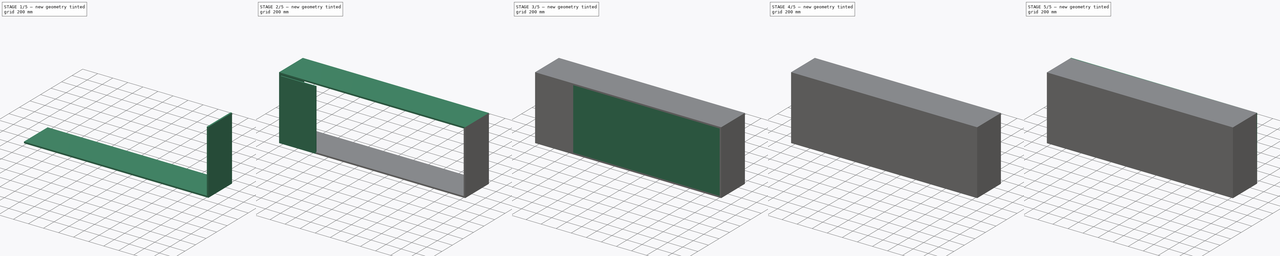
[diagram: build sequence overview — one tinted view per stage of 5, left to right]
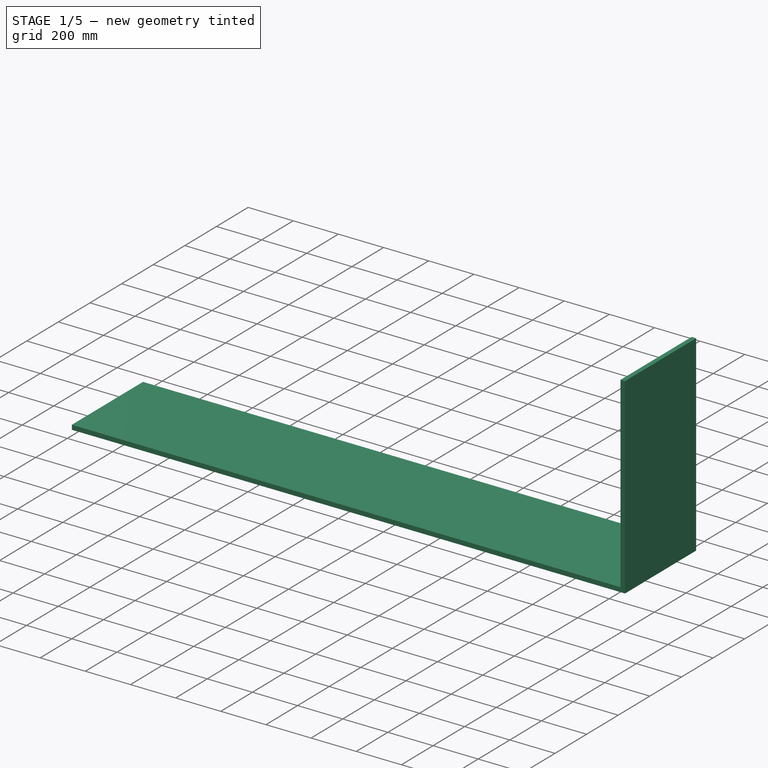
[diagram: stage 1 of 5 — iso view after this stage's code; geometry added in this stage tinted green]
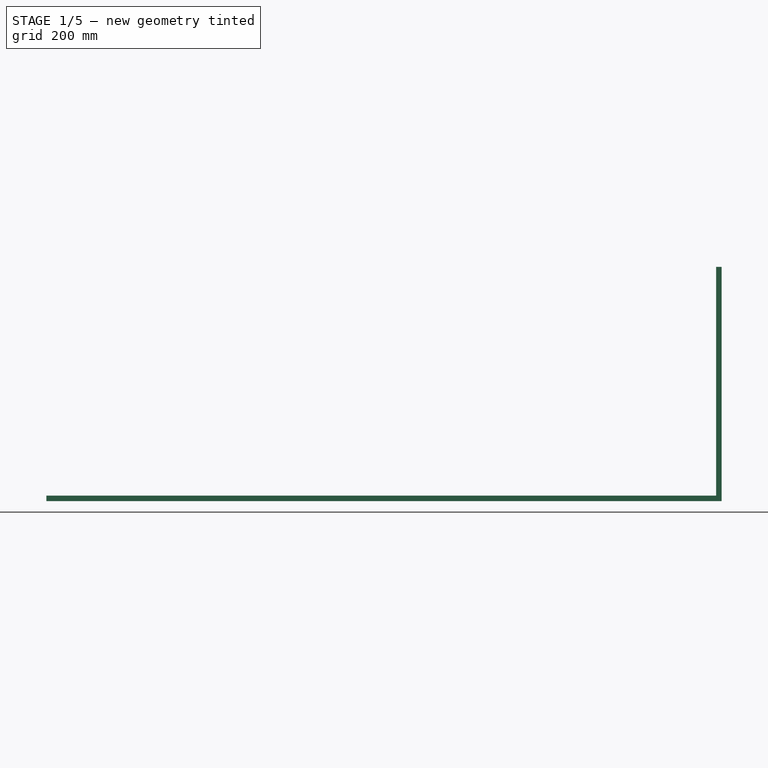
[diagram: stage 1 of 5 — front view after this stage's code; geometry added in this stage tinted green]
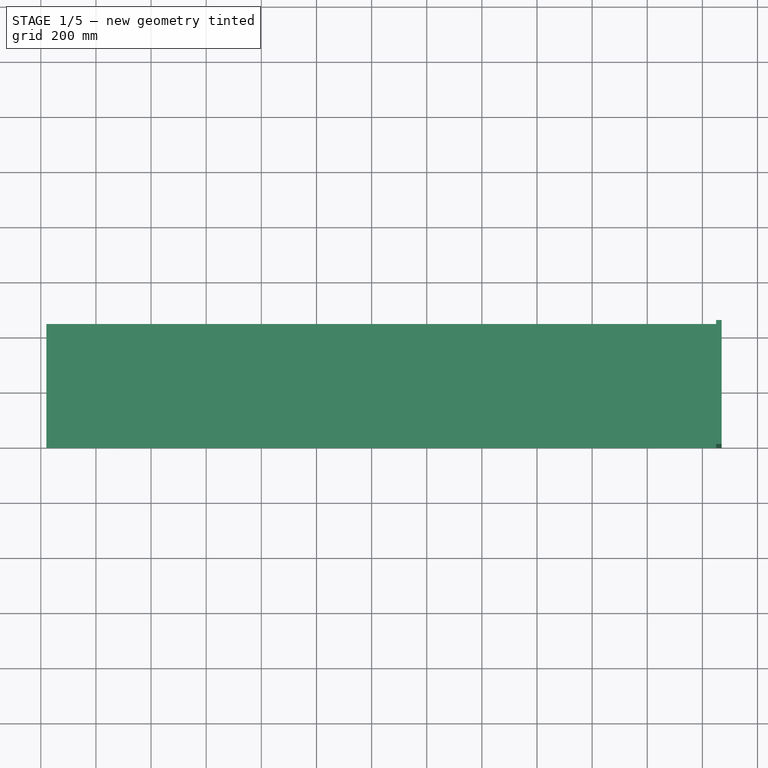
[diagram: stage 1 of 5 — top view after this stage's code; geometry added in this stage tinted green]
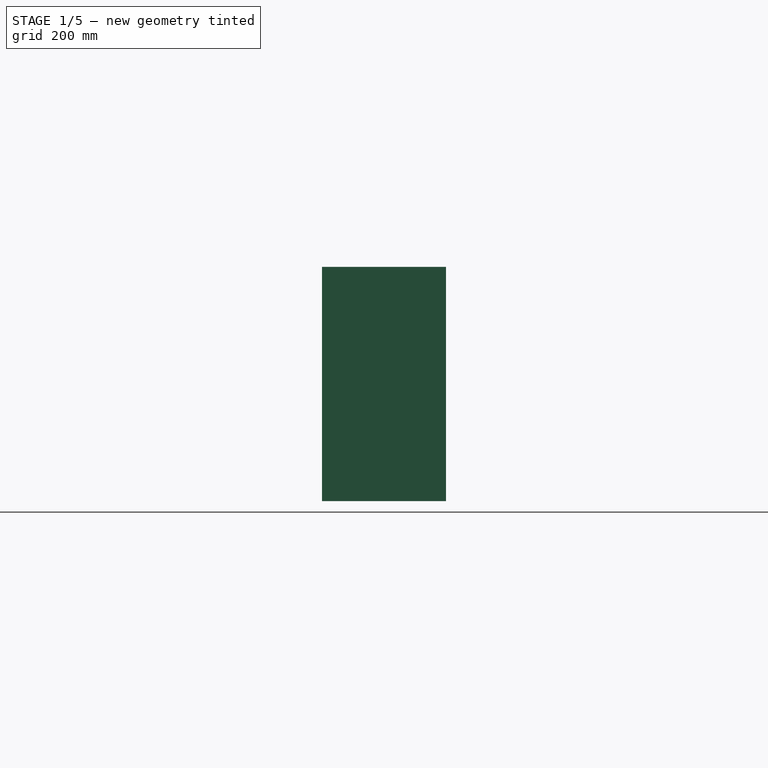
[diagram: stage 1 of 5 — right view after this stage's code; geometry added in this stage tinted green]
FCSTD DOCUMENT  (FreeCAD 0.21R33668 +26 (Git))
Label: Armário
License: All rights reserved
LicenseURL: http://en.wikipedia.org/wiki/All_rights_reserved
objects: Sketcher::SketchObject×7, Part::Extrusion×7, Part::FeaturePython×6, Part::MultiFuse×2, Spreadsheet::Sheet×1, Part::Compound×1
note: 23 computed .brp shape members not serialized (recipe doc carries the construction recipe); baked Part::Feature solids carry a one-line shape summary decoded from their .brp

FEATURE [Part::Extrusion] Extrude  label="Tampo inferior"
  Base = -> Sketch
  Dir = (0,0,1)
  DirMode = 2
  FaceMakerClass = Part::FaceMakerBullseye
  LengthFwd = 20
  LengthRev = 0
  Placement = pos=(20,0,0) rot=(0,0,1;0rad)
  Solid = true
  Symmetric = false
  expr: .Placement.Base.x = <<Tabela_armario_prateleira>>.especura_esterna
  expr: LengthFwd = <<Tabela_armario_prateleira>>.especura_esterna
FEATURE [Part::Extrusion] Extrude001  label="lateral esquerda"
  Base = -> Sketch001
  Dir = (0,0,1)
  DirMode = 2
  FaceMakerClass = Part::FaceMakerBullseye
  LengthFwd = 850
  LengthRev = 0
  Solid = true
  Symmetric = false
  expr: LengthFwd = <<Tabela_armario_prateleira>>.altura
FEATURE [Part::FeaturePython] Clone001  label="lateral esquerda001"  # Draft clone (typed FeaturePython)
  AttacherType = Attacher::AttachEngine3D
  Fuse = false
  Objects = -> [Extrude001]
  Placement = pos=(2450,0,0) rot=(0,0,1;0rad)
  Scale = (1,1,1)
  expr: .Placement.Base.x = <<Tabela_armario_prateleira>>.comprimento - <<Tabela_armario_prateleira>>.especura_esterna
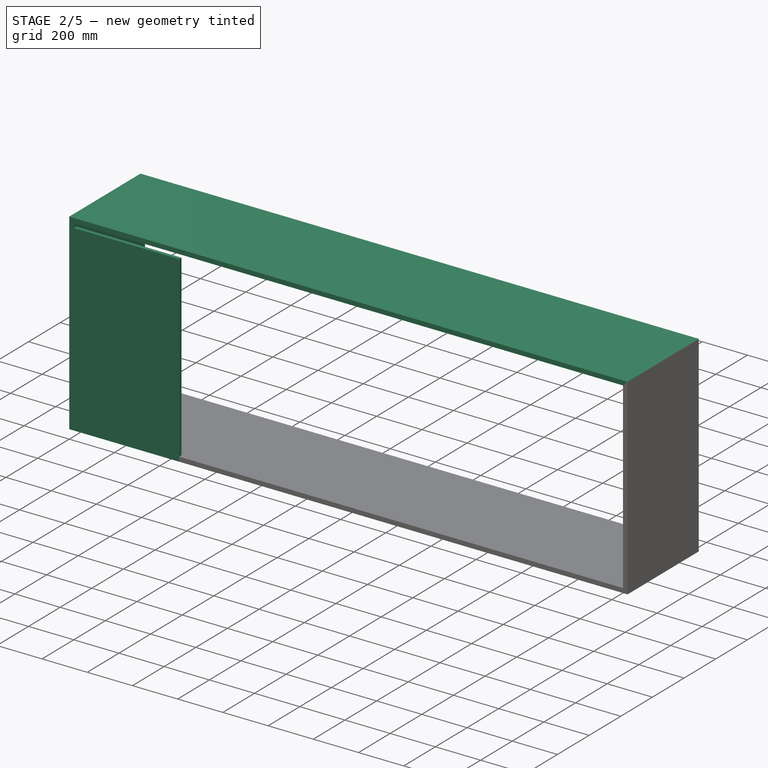
[diagram: stage 2 of 5 — iso view after this stage's code; geometry added in this stage tinted green]
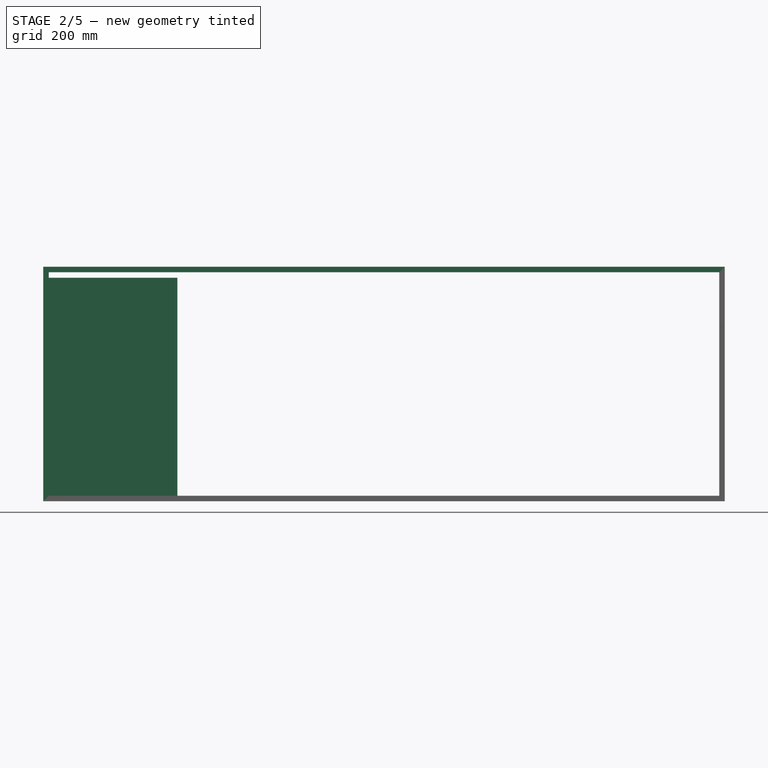
[diagram: stage 2 of 5 — front view after this stage's code; geometry added in this stage tinted green]
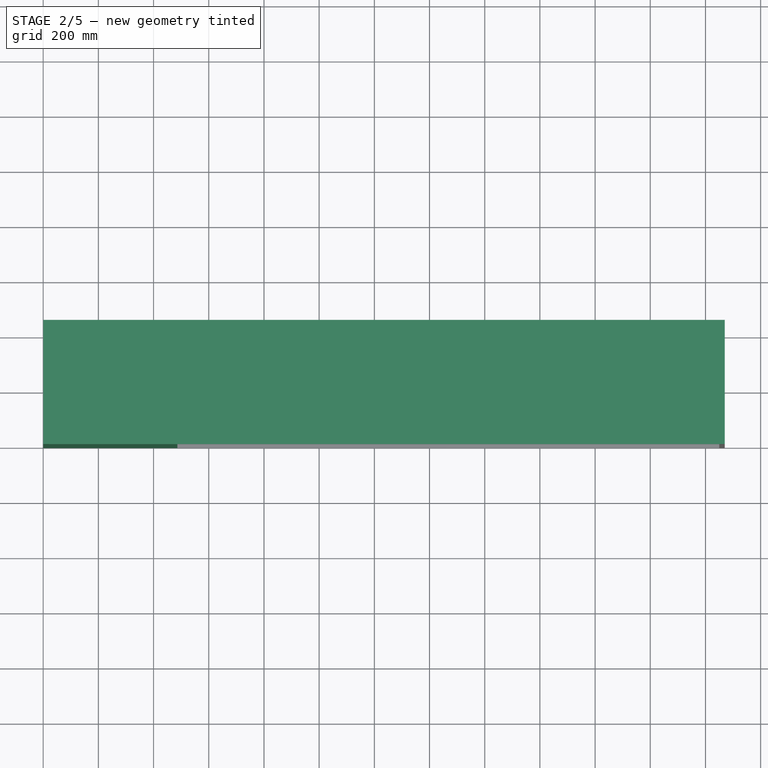
[diagram: stage 2 of 5 — top view after this stage's code; geometry added in this stage tinted green]
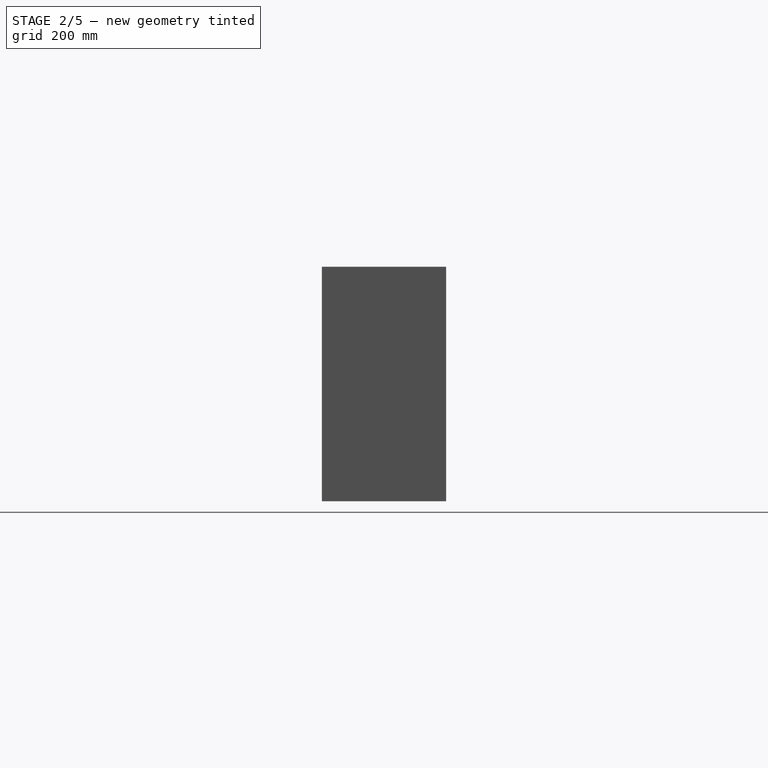
[diagram: stage 2 of 5 — right view after this stage's code; geometry added in this stage tinted green]
FEATURE [Part::FeaturePython] Clone  label="tampo"  # Draft clone (typed FeaturePython)
  AttacherType = Attacher::AttachEngine3D
  Fuse = false
  Objects = -> [Extrude]
  Placement = pos=(20,0,830) rot=(0,0,1;0rad)
  Scale = (1,1,1)
  expr: .Placement.Base.x = <<Tabela_armario_prateleira>>.especura_esterna
  expr: .Placement.Base.z = <<Tabela_armario_prateleira>>.altura - <<Tabela_armario_prateleira>>.especura_esterna
FEATURE [Sketcher::SketchObject] Sketch005
  FullyConstrained = true
  expr: Constraints[10] = <<Tabela_armario_prateleira>>.comprimento - 2 * <<Tabela_armario_prateleira>>.especura_esterna
  expr: Constraints[9] = <<Tabela_armario_prateleira>>.largura / 4
  sketch-geometry (4):
    g0: LineSegment StartX=0 StartY=0 StartZ=0 EndX=2430 EndY=0 EndZ=0
    g1: LineSegment StartX=2430 StartY=0 StartZ=0 EndX=2430 EndY=112.5 EndZ=0
    g2: LineSegment StartX=2430 StartY=112.5 StartZ=0 EndX=0 EndY=112.5 EndZ=0
    g3: LineSegment StartX=0 StartY=112.5 StartZ=0 EndX=0 EndY=0 EndZ=0
  constraints (11):
    c: Coincident(g0,g1)
    c: Coincident(g1,g2)
    c: Coincident(g2,g3)
    c: Coincident(g3,g0)
    c: Horizontal(g0)
    c: Horizontal(g2)
    c: Vertical(g1)
    c: Vertical(g3)
    c: Coincident(g0,g-1)
    c: DistanceY(g1,g1) = 112.5
    c: DistanceX(g2,g2) = 2430
FEATURE [Part::Extrusion] Extrude006  label="Porta"
  Base = -> Sketch006
  Dir = (0,0,1)
  DirMode = 2
  FaceMakerClass = Part::FaceMakerBullseye
  LengthFwd = 810
  LengthRev = 0
  Solid = true
  Symmetric = false
  expr: LengthFwd = <<Tabela_armario_prateleira>>.altura - 2 * <<Tabela_armario_prateleira>>.especura_esterna
FEATURE [Part::MultiFuse] Fusion  label="Caixa externa"
  Refine = true
  Shapes = -> [Extrude,Clone001,Clone,Extrude001]
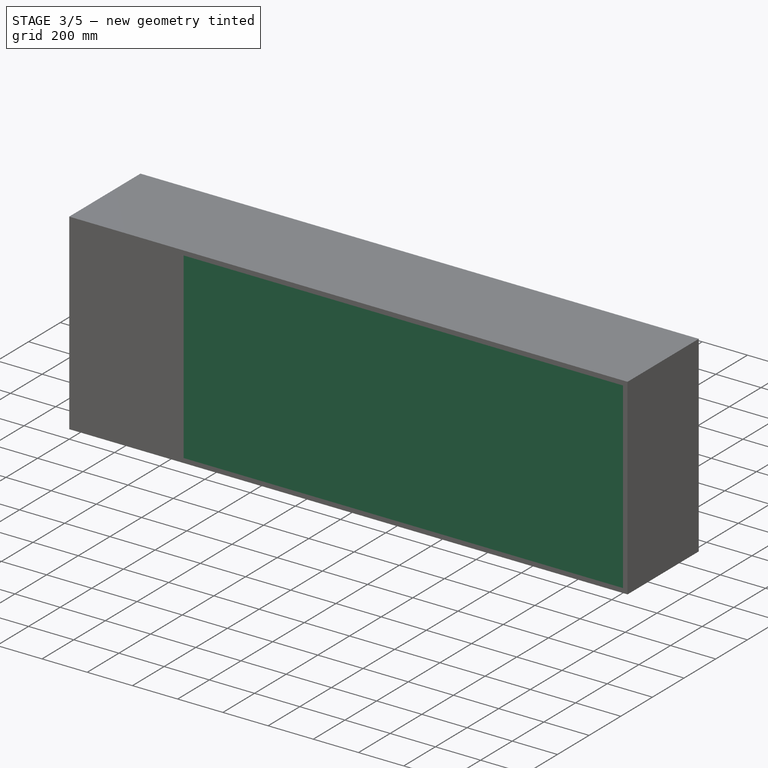
[diagram: stage 3 of 5 — iso view after this stage's code; geometry added in this stage tinted green]
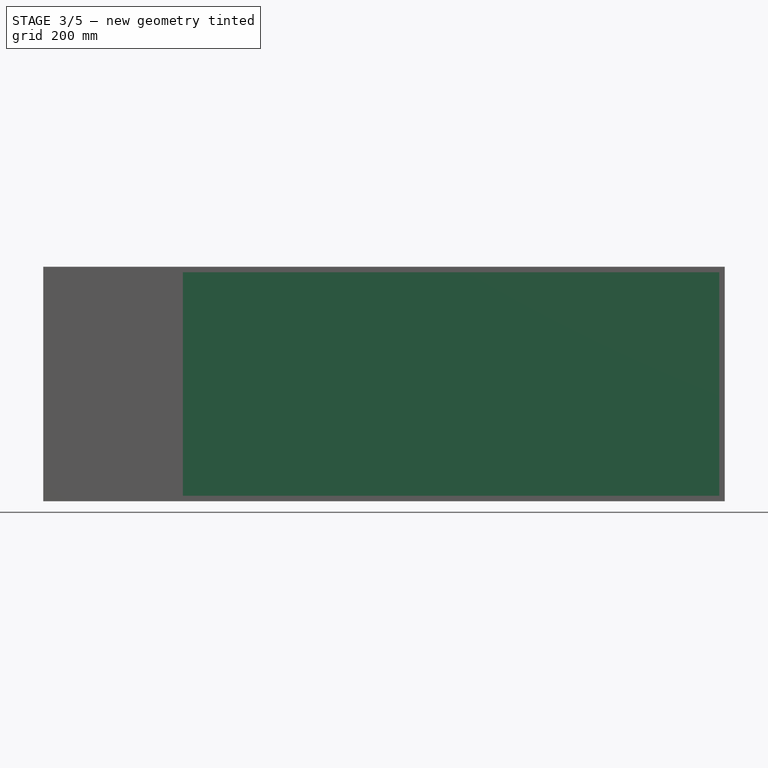
[diagram: stage 3 of 5 — front view after this stage's code; geometry added in this stage tinted green]
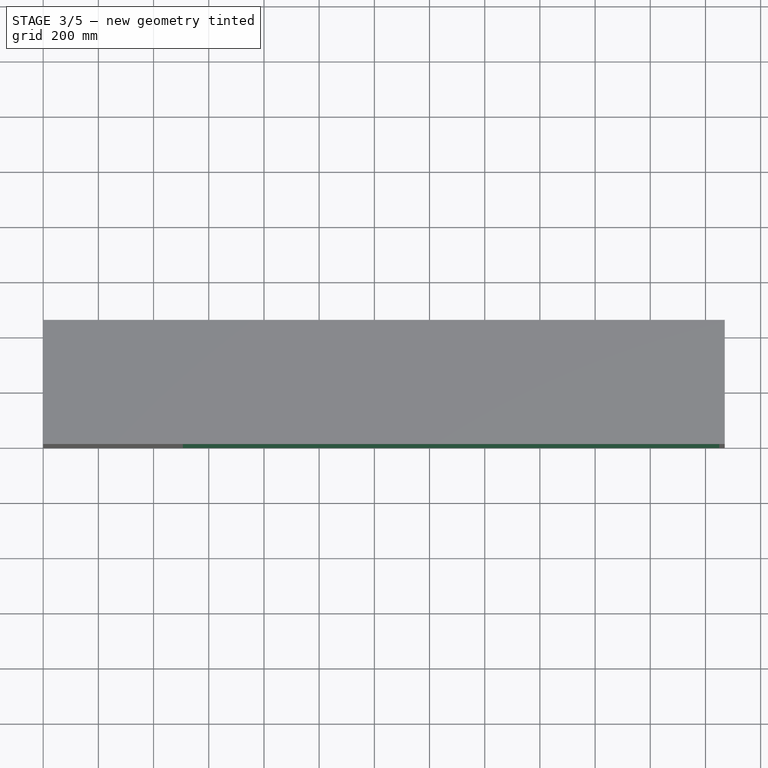
[diagram: stage 3 of 5 — top view after this stage's code; geometry added in this stage tinted green]
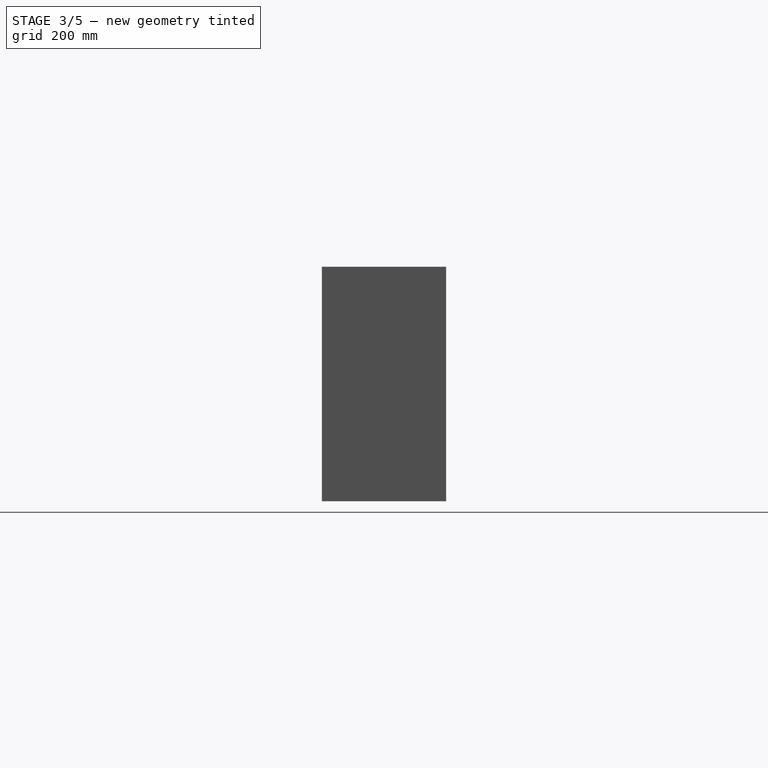
[diagram: stage 3 of 5 — right view after this stage's code; geometry added in this stage tinted green]
FEATURE [Sketcher::SketchObject] Sketch004
  FullyConstrained = true
  expr: Constraints[10] = <<Tabela_armario_prateleira>>.largura - <<Tabela_armario_prateleira>>.especura_interna
  expr: Constraints[9] = <<Tabela_armario_prateleira>>.especura_interna
  sketch-geometry (4):
    g0: LineSegment StartX=0 StartY=0 StartZ=0 EndX=15 EndY=0 EndZ=0
    g1: LineSegment StartX=15 StartY=0 StartZ=0 EndX=15 EndY=435 EndZ=0
    g2: LineSegment StartX=15 StartY=435 StartZ=0 EndX=0 EndY=435 EndZ=0
    g3: LineSegment StartX=0 StartY=435 StartZ=0 EndX=0 EndY=0 EndZ=0
  constraints (11):
    c: Coincident(g0,g1)
    c: Coincident(g1,g2)
    c: Coincident(g2,g3)
    c: Coincident(g3,g0)
    c: Horizontal(g0)
    c: Horizontal(g2)
    c: Vertical(g1)
    c: Vertical(g3)
    c: Coincident(g0,g-1)
    c: Distance(g2) = 15
    c: DistanceY(g3,g3) = 435
FEATURE [Part::Extrusion] Extrude004  label="Divisória interna"
  Base = -> Sketch004
  Dir = (0,0,1)
  DirMode = 2
  FaceMakerClass = Part::FaceMakerBullseye
  LengthFwd = 780
  LengthRev = 0
  Solid = true
  Symmetric = false
  expr: LengthFwd = <<Tabela_armario_prateleira>>.altura - 2 * (<<Tabela_armario_prateleira>>.especura_interna + <<Tabela_armario_prateleira>>.especura_esterna)
FEATURE [Part::Extrusion] Extrude005  label="Reforço superior interno "
  Base = -> Sketch005
  Dir = (0,0,1)
  DirMode = 2
  FaceMakerClass = Part::FaceMakerBullseye
  LengthFwd = 15
  LengthRev = 0
  Placement = pos=(20,15,815) rot=(0,0,1;0rad)
  Solid = true
  Symmetric = false
  expr: .Placement.Base.x = <<Tabela_armario_prateleira>>.especura_esterna
  expr: .Placement.Base.y = <<Tabela_armario_prateleira>>.especura_interna
  expr: .Placement.Base.z = <<Tabela_armario_prateleira>>.altura - <<Tabela_armario_prateleira>>.especura_esterna - <<Tabela_armario_prateleira>>.especura_interna
  expr: LengthFwd = <<Tabela_armario_prateleira>>.especura_interna
FEATURE [Part::FeaturePython] Clone002  label="Reforço superior interno 001"  # Draft clone (typed FeaturePython)
  AttacherType = Attacher::AttachEngine3D
  Fuse = false
  Objects = -> [Extrude005]
  Placement = pos=(20,337.5,815) rot=(0,0,1;0rad)
  Scale = (1,1,1)
  expr: .Placement.Base.x = <<Tabela_armario_prateleira>>.especura_esterna
  expr: .Placement.Base.y = <<Tabela_armario_prateleira>>.largura * 3 / 4
  expr: .Placement.Base.z = <<Tabela_armario_prateleira>>.altura - <<Tabela_armario_prateleira>>.especura_esterna - <<Tabela_armario_prateleira>>.especura_interna
FEATURE [Part::FeaturePython] Array001  label="Portas"  # Draft array (typed FeaturePython)
  Angle = 360
  ArrayType = 0
  Axis = (0,0,1)
  Base = -> Extrude006
  Center = (0,0,0)
  Count = 5
  Fuse = false
  IntervalAxis = (0,0,0)
  IntervalX = (486,0,0)
  IntervalY = (0,0,0)
  IntervalZ = (0,0,0)
  NumberCircles = 3
  NumberPolar = 5
  NumberX = 5
  NumberY = 1
  NumberZ = 1
  Placement = pos=(20,0,20) rot=(0,0,1;0rad)
  RadialDistance = 50
  Symmetry = 1
  TangentialDistance = 25
  expr: .IntervalX.x = (<<Tabela_armario_prateleira>>.comprimento - 2 * <<Tabela_armario_prateleira>>.especura_esterna) / <<Tabela_armario_prateleira>>.n_portas
  expr: .Placement.Base.x = <<Tabela_armario_prateleira>>.especura_esterna
  expr: .Placement.Base.z = <<Tabela_armario_prateleira>>.especura_esterna
  expr: NumberX = <<Tabela_armario_prateleira>>.n_portas
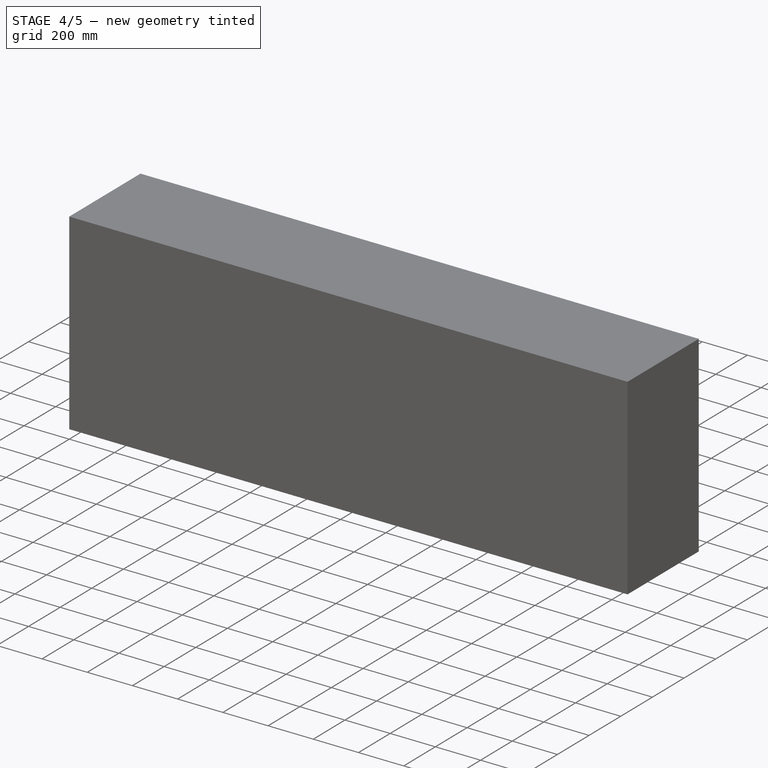
[diagram: stage 4 of 5 — iso view after this stage's code; geometry added in this stage tinted green]
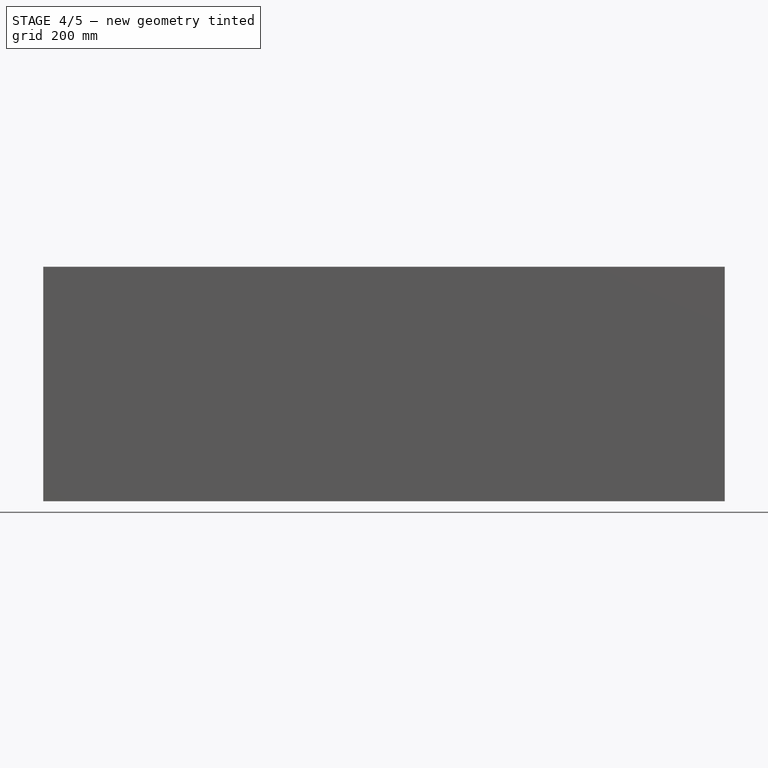
[diagram: stage 4 of 5 — front view after this stage's code; geometry added in this stage tinted green]
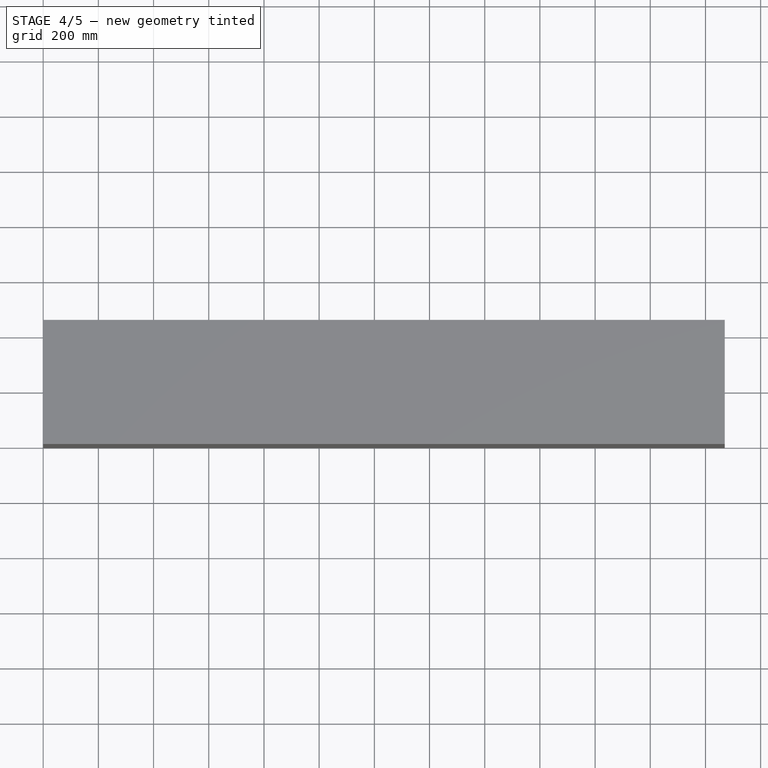
[diagram: stage 4 of 5 — top view after this stage's code; geometry added in this stage tinted green]
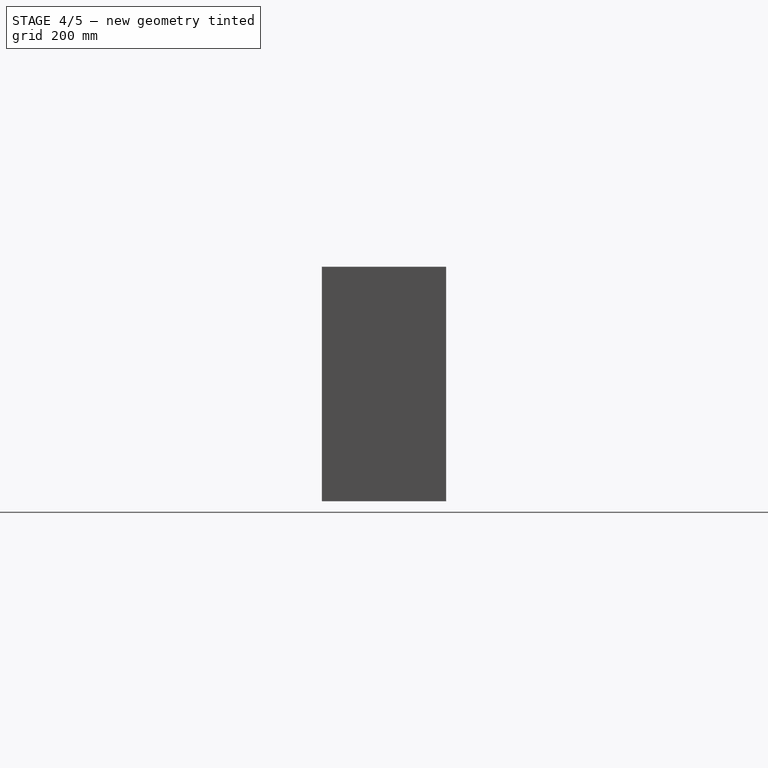
[diagram: stage 4 of 5 — right view after this stage's code; geometry added in this stage tinted green]
FEATURE [Sketcher::SketchObject] Sketch
  FullyConstrained = true
  expr: Constraints[10] = <<Tabela_armario_prateleira>>.largura
  expr: Constraints[9] = <<Tabela_armario_prateleira>>.comprimento - 2 * <<Tabela_armario_prateleira>>.especura_esterna
  sketch-geometry (4):
    g0: LineSegment StartX=0 StartY=0 StartZ=0 EndX=2430 EndY=0 EndZ=0
    g1: LineSegment StartX=2430 StartY=0 StartZ=0 EndX=2430 EndY=450 EndZ=0
    g2: LineSegment StartX=2430 StartY=450 StartZ=0 EndX=0 EndY=450 EndZ=0
    g3: LineSegment StartX=0 StartY=450 StartZ=0 EndX=0 EndY=0 EndZ=0
  constraints (11):
    c: Coincident(g0,g1)
    c: Coincident(g1,g2)
    c: Coincident(g2,g3)
    c: Coincident(g3,g0)
    c: Horizontal(g0)
    c: Horizontal(g2)
    c: Vertical(g1)
    c: Vertical(g3)
    c: Coincident(g0,g-1)
    c: Distance(g2) = 2430
    c: Distance(g1) = 450
FEATURE [Sketcher::SketchObject] Sketch001
  FullyConstrained = true
  expr: Constraints[10] = <<Tabela_armario_prateleira>>.largura
  expr: Constraints[9] = <<Tabela_armario_prateleira>>.especura_esterna
  sketch-geometry (4):
    g0: LineSegment StartX=0 StartY=0 StartZ=0 EndX=20 EndY=0 EndZ=0
    g1: LineSegment StartX=20 StartY=0 StartZ=0 EndX=20 EndY=450 EndZ=0
    g2: LineSegment StartX=20 StartY=450 StartZ=0 EndX=0 EndY=450 EndZ=0
    g3: LineSegment StartX=0 StartY=450 StartZ=0 EndX=0 EndY=0 EndZ=0
  constraints (11):
    c: Coincident(g0,g1)
    c: Coincident(g1,g2)
    c: Coincident(g2,g3)
    c: Coincident(g3,g0)
    c: Horizontal(g0)
    c: Horizontal(g2)
    c: Vertical(g1)
    c: Vertical(g3)
    c: Coincident(g0,g-1)
    c: Distance(g2) = 20
    c: DistanceY(g3,g3) = 450
FEATURE [Sketcher::SketchObject] Sketch006
  FullyConstrained = true
  expr: Constraints[10] = (<<Tabela_armario_prateleira>>.comprimento - 2 * <<Tabela_armario_prateleira>>.especura_esterna) / <<Tabela_armario_prateleira>>.n_portas
  expr: Constraints[9] = <<Tabela_armario_prateleira>>.especura_interna
  sketch-geometry (4):
    g0: LineSegment StartX=0 StartY=0 StartZ=0 EndX=486 EndY=0 EndZ=0
    g1: LineSegment StartX=486 StartY=0 StartZ=0 EndX=486 EndY=15 EndZ=0
    g2: LineSegment StartX=486 StartY=15 StartZ=0 EndX=0 EndY=15 EndZ=0
    g3: LineSegment StartX=0 StartY=15 StartZ=0 EndX=0 EndY=0 EndZ=0
  constraints (11):
    c: Coincident(g0,g1)
    c: Coincident(g1,g2)
    c: Coincident(g2,g3)
    c: Coincident(g3,g0)
    c: Horizontal(g0)
    c: Horizontal(g2)
    c: Vertical(g1)
    c: Vertical(g3)
    c: Coincident(g0,g-1)
    c: DistanceY(g1,g1) = 15
    c: DistanceX(g0,g0) = 486
FEATURE [Sketcher::SketchObject] Sketch003
  FullyConstrained = true
  expr: Constraints[10] = <<Tabela_armario_prateleira>>.largura - <<Tabela_armario_prateleira>>.especura_interna
  expr: Constraints[9] = <<Tabela_armario_prateleira>>.comprimento - 2 * <<Tabela_armario_prateleira>>.especura_esterna
  sketch-geometry (4):
    g0: LineSegment StartX=0 StartY=0 StartZ=0 EndX=2430 EndY=0 EndZ=0
    g1: LineSegment StartX=2430 StartY=0 StartZ=0 EndX=2430 EndY=435 EndZ=0
    g2: LineSegment StartX=2430 StartY=435 StartZ=0 EndX=0 EndY=435 EndZ=0
    g3: LineSegment StartX=0 StartY=435 StartZ=0 EndX=0 EndY=0 EndZ=0
  constraints (11):
    c: Coincident(g0,g1)
    c: Coincident(g1,g2)
    c: Coincident(g2,g3)
    c: Coincident(g3,g0)
    c: Horizontal(g0)
    c: Horizontal(g2)
    c: Vertical(g1)
    c: Vertical(g3)
    c: Coincident(g0,g-1)
    c: Distance(g2) = 2430
    c: Distance(g1) = 435
FEATURE [Part::Extrusion] Extrude003  label="Tampo inferior interno"
  Base = -> Sketch003
  Dir = (0,0,1)
  DirMode = 2
  FaceMakerClass = Part::FaceMakerBullseye
  LengthFwd = 15
  LengthRev = 0
  Placement = pos=(20,15,20) rot=(0,0,1;0rad)
  Solid = true
  Symmetric = false
  expr: .Placement.Base.x = <<Tabela_armario_prateleira>>.especura_esterna
  expr: .Placement.Base.y = <<Tabela_armario_prateleira>>.especura_interna
  expr: .Placement.Base.z = <<Tabela_armario_prateleira>>.especura_esterna
  expr: LengthFwd = <<Tabela_armario_prateleira>>.especura_interna
FEATURE [Part::FeaturePython] Array002  # Draft array (typed FeaturePython)
  Angle = 360
  ArrayType = 0
  Axis = (0,0,1)
  Base = -> Extrude003
  Center = (0,0,0)
  Count = 3
  Fuse = false
  IntervalAxis = (0,0,0)
  IntervalX = (1,0,0)
  IntervalY = (0,1,0)
  IntervalZ = (0,0,260)
  NumberCircles = 3
  NumberPolar = 5
  NumberX = 1
  NumberY = 1
  NumberZ = 3
  RadialDistance = 50
  Symmetry = 1
  TangentialDistance = 25
  expr: .IntervalZ.z = (<<Tabela_armario_prateleira>>.altura - 2 * (<<Tabela_armario_prateleira>>.especura_esterna + <<Tabela_armario_prateleira>>.especura_interna)) / <<Tabela_armario_prateleira>>.n_div_ho
  expr: NumberZ = <<Tabela_armario_prateleira>>.n_div_ho
FEATURE [Sketcher::SketchObject] Sketch002
  FullyConstrained = true
  expr: Constraints[10] = <<Tabela_armario_prateleira>>.comprimento
  sketch-geometry (4):
    g0: LineSegment StartX=0 StartY=0 StartZ=0 EndX=2470 EndY=0 EndZ=0
    g1: LineSegment StartX=2470 StartY=0 StartZ=0 EndX=2470 EndY=10 EndZ=0
    g2: LineSegment StartX=2470 StartY=10 StartZ=0 EndX=0 EndY=10 EndZ=0
    g3: LineSegment StartX=0 StartY=10 StartZ=0 EndX=0 EndY=0 EndZ=0
  constraints (11):
    c: Coincident(g0,g1)
    c: Coincident(g1,g2)
    c: Coincident(g2,g3)
    c: Coincident(g3,g0)
    c: Horizontal(g0)
    c: Horizontal(g2)
    c: Vertical(g1)
    c: Vertical(g3)
    c: Coincident(g0,g-1)
    c: DistanceY(g1,g1) = 10
    c: Distance(g2) = 2470
FEATURE [Part::FeaturePython] Array  label="Divisórias internas"  # Draft array (typed FeaturePython)
  Angle = 360
  ArrayType = 0
  Axis = (0,0,1)
  Base = -> Extrude004
  Center = (0,0,0)
  Count = 3
  Fuse = false
  IntervalAxis = (0,0,0)
  IntervalX = (1207.5,0,0)
  IntervalY = (0,0,0)
  IntervalZ = (0,0,0)
  NumberCircles = 3
  NumberPolar = 5
  NumberX = 3
  NumberY = 1
  NumberZ = 1
  Placement = pos=(20,15,35) rot=(0,0,1;0rad)
  RadialDistance = 50
  Symmetry = 1
  TangentialDistance = 25
  expr: .IntervalX.x = (<<Tabela_armario_prateleira>>.comprimento - 2 * <<Tabela_armario_prateleira>>.especura_esterna - <<Tabela_armario_prateleira>>.especura_interna) / <<Tabela_armario_prateleira>>.n_div_vert
  expr: .Placement.Base.x = <<Tabela_armario_prateleira>>.especura_esterna
  expr: .Placement.Base.y = <<Tabela_armario_prateleira>>.especura_interna
  expr: .Placement.Base.z = <<Tabela_armario_prateleira>>.especura_esterna + <<Tabela_armario_prateleira>>.especura_interna
  expr: NumberX = <<Tabela_armario_prateleira>>.n_div_vert + 1
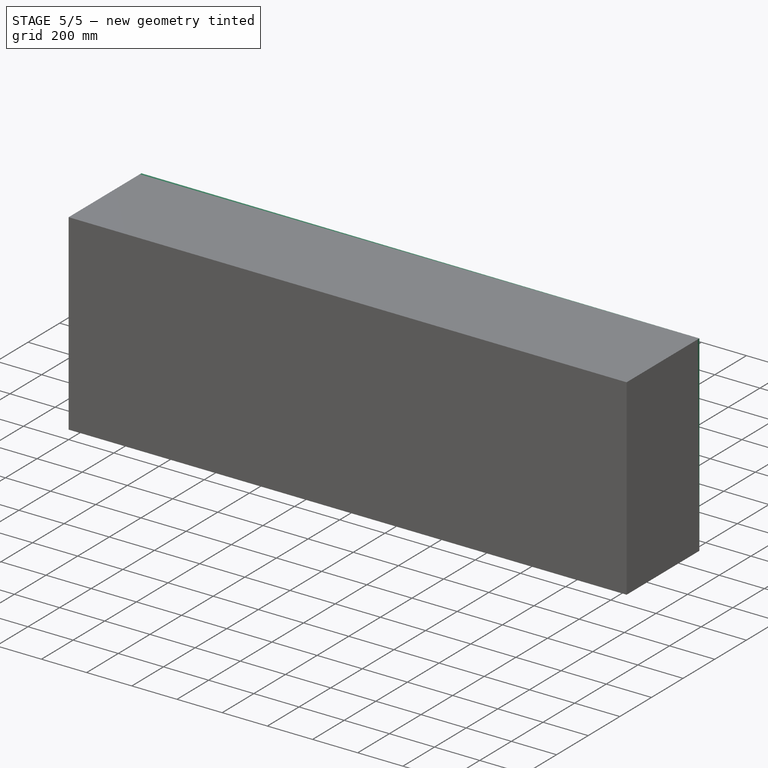
[diagram: stage 5 of 5 — iso view after this stage's code; geometry added in this stage tinted green]
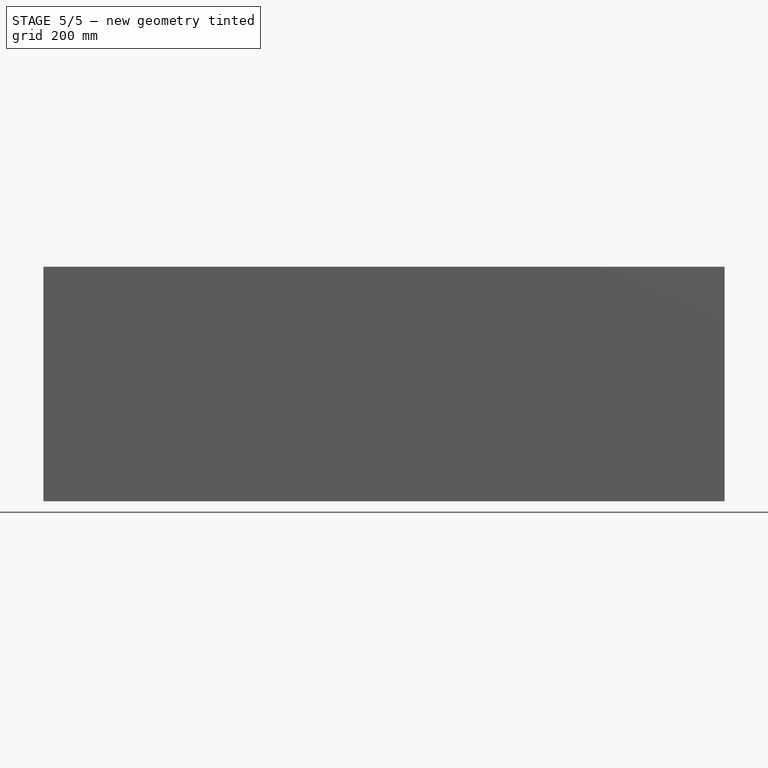
[diagram: stage 5 of 5 — front view after this stage's code; geometry added in this stage tinted green]
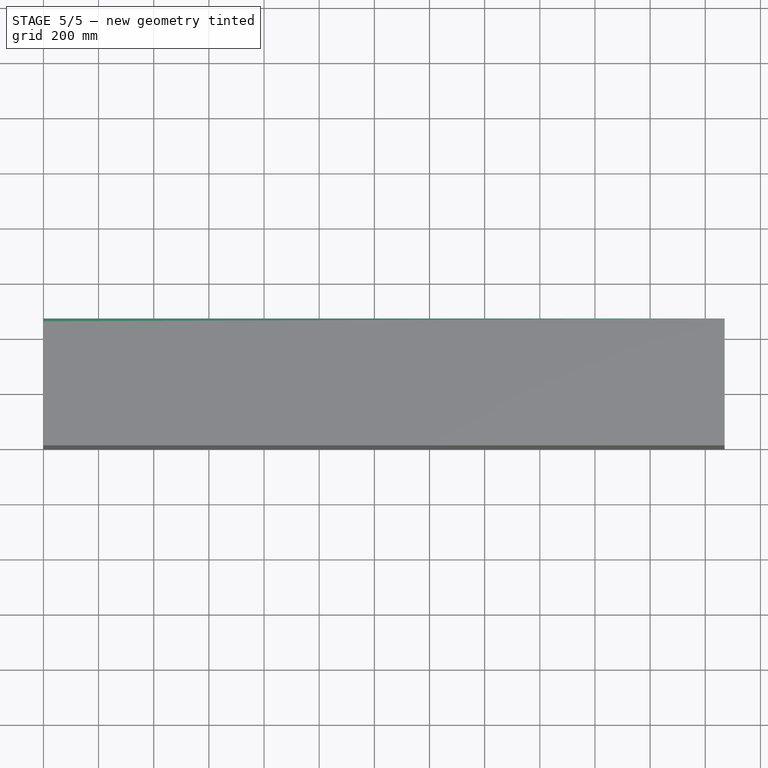
[diagram: stage 5 of 5 — top view after this stage's code; geometry added in this stage tinted green]
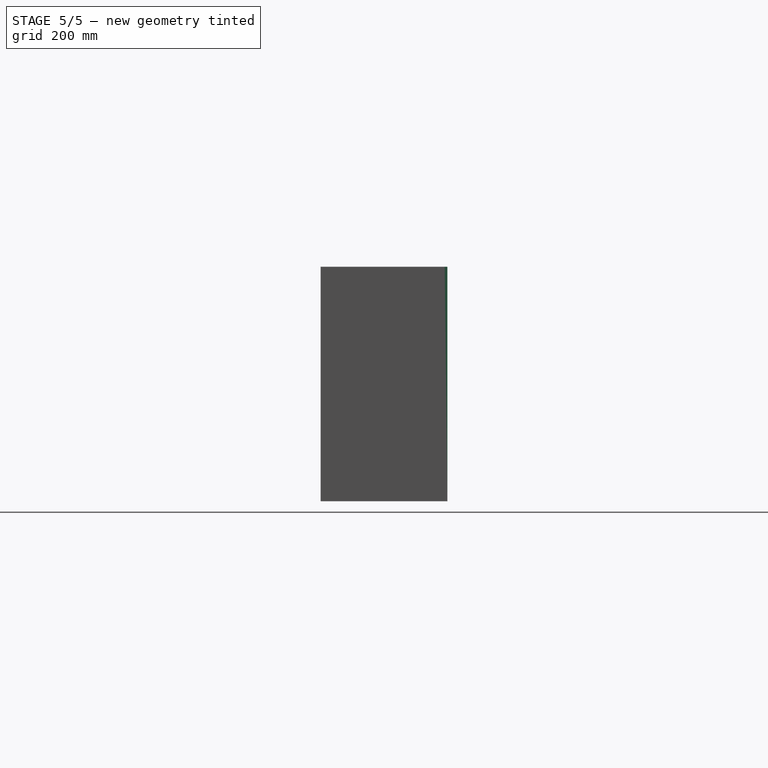
[diagram: stage 5 of 5 — right view after this stage's code; geometry added in this stage tinted green]
FEATURE [Part::Extrusion] Extrude002  label="Fundo"
  Base = -> Sketch002
  Dir = (0,0,1)
  DirMode = 2
  FaceMakerClass = Part::FaceMakerBullseye
  LengthFwd = 850
  LengthRev = 0
  Placement = pos=(0,450,0) rot=(0,0,1;0rad)
  Solid = true
  Symmetric = false
  expr: .Placement.Base.y = <<Tabela_armario_prateleira>>.largura
  expr: LengthFwd = <<Tabela_armario_prateleira>>.altura
FEATURE [Part::MultiFuse] Fusion001  label="Divisão interna"
  Refine = true
  Shapes = -> [Array002,Array]
FEATURE [Spreadsheet::Sheet] Spreadsheet  label="Tabela_armario_prateleira"
  cells = A1='PROPRIEDADES; A2='Comprimento; B2(comprimento)==247 cm; A3='Largura; B3(largura)==45 cm; A4='Altura; B4(altura)==85 cm; A5='N_portas; B5(n_portas)=5; A6='N_div_ho; B6(n_div_ho)=3; A7='N_div_vert; B7(n_div_vert)=2; A8='Espeçura_externa; B8(especura_esterna)==2 cm; A9='Espeçura_interna; B9(especura_interna)==1.5 cm
FEATURE [Part::Compound] Compound  label="Armário"
  Links = -> [Spreadsheet,Extrude002,Extrude005,Clone002,Array001,Fusion,Fusion001]
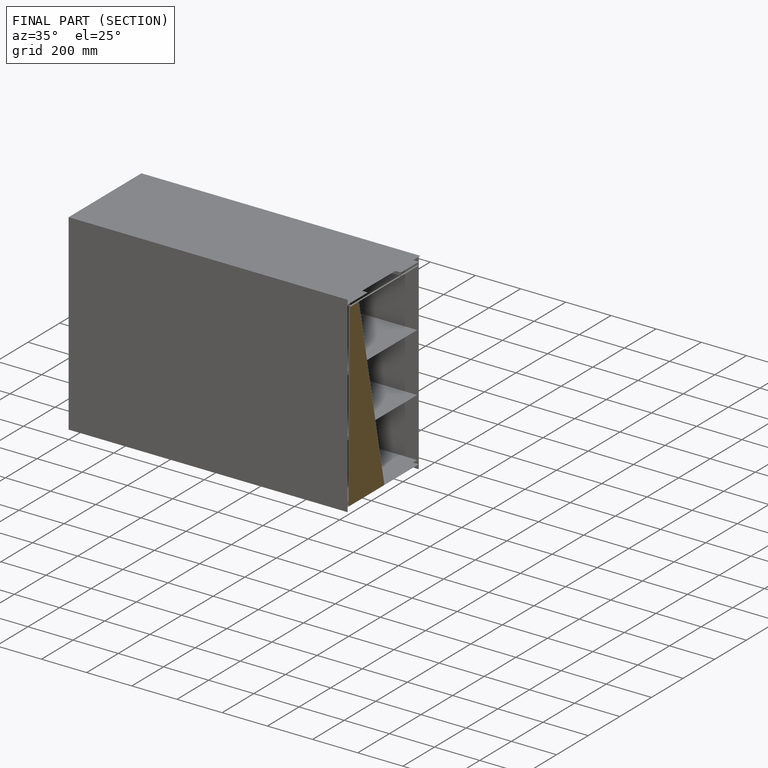
[diagram: finished part — half-section view (interior)]
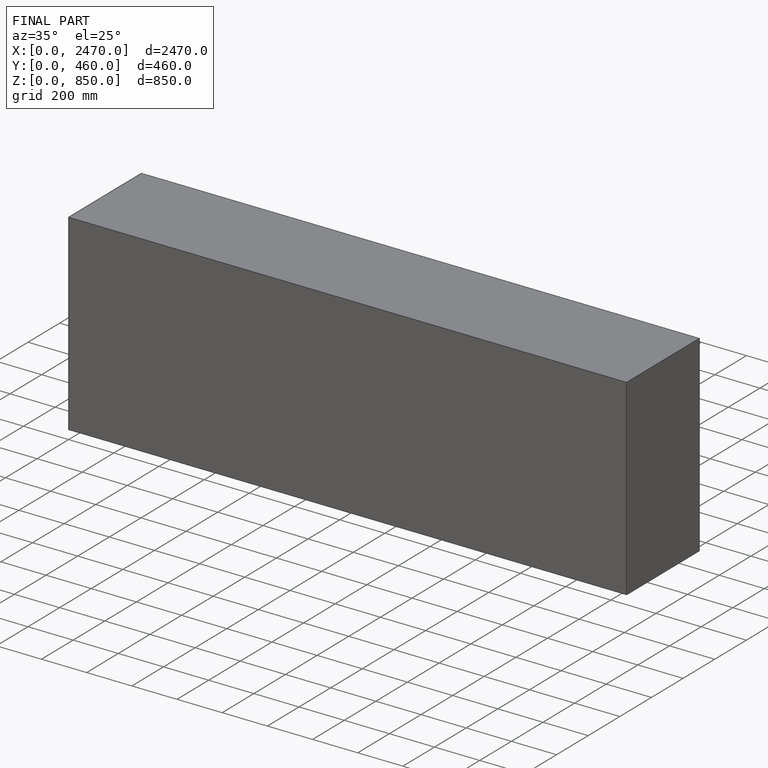
[diagram: finished part — iso view with bounding-box wireframe]
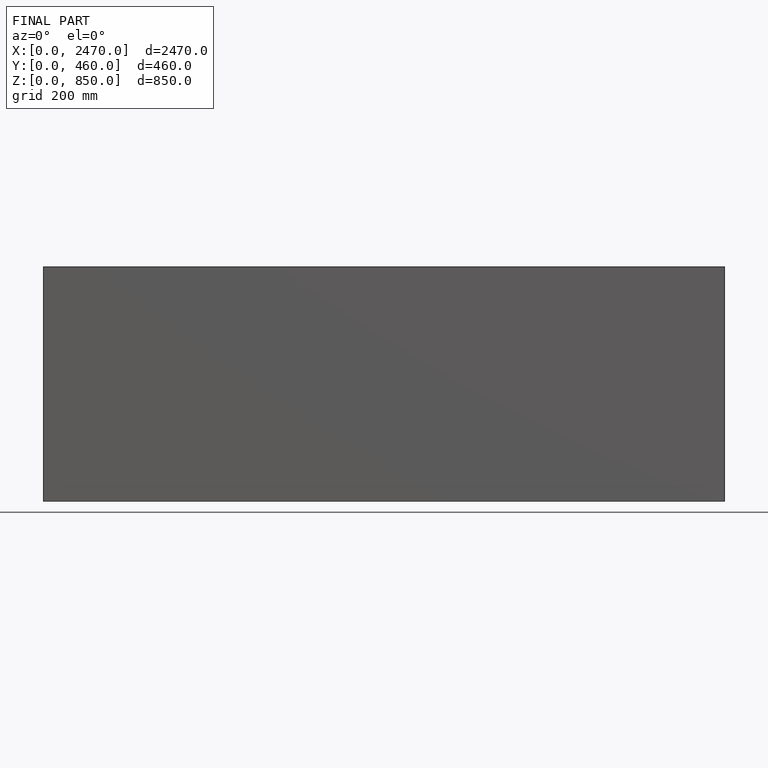
[diagram: finished part — front view with bounding-box wireframe]
